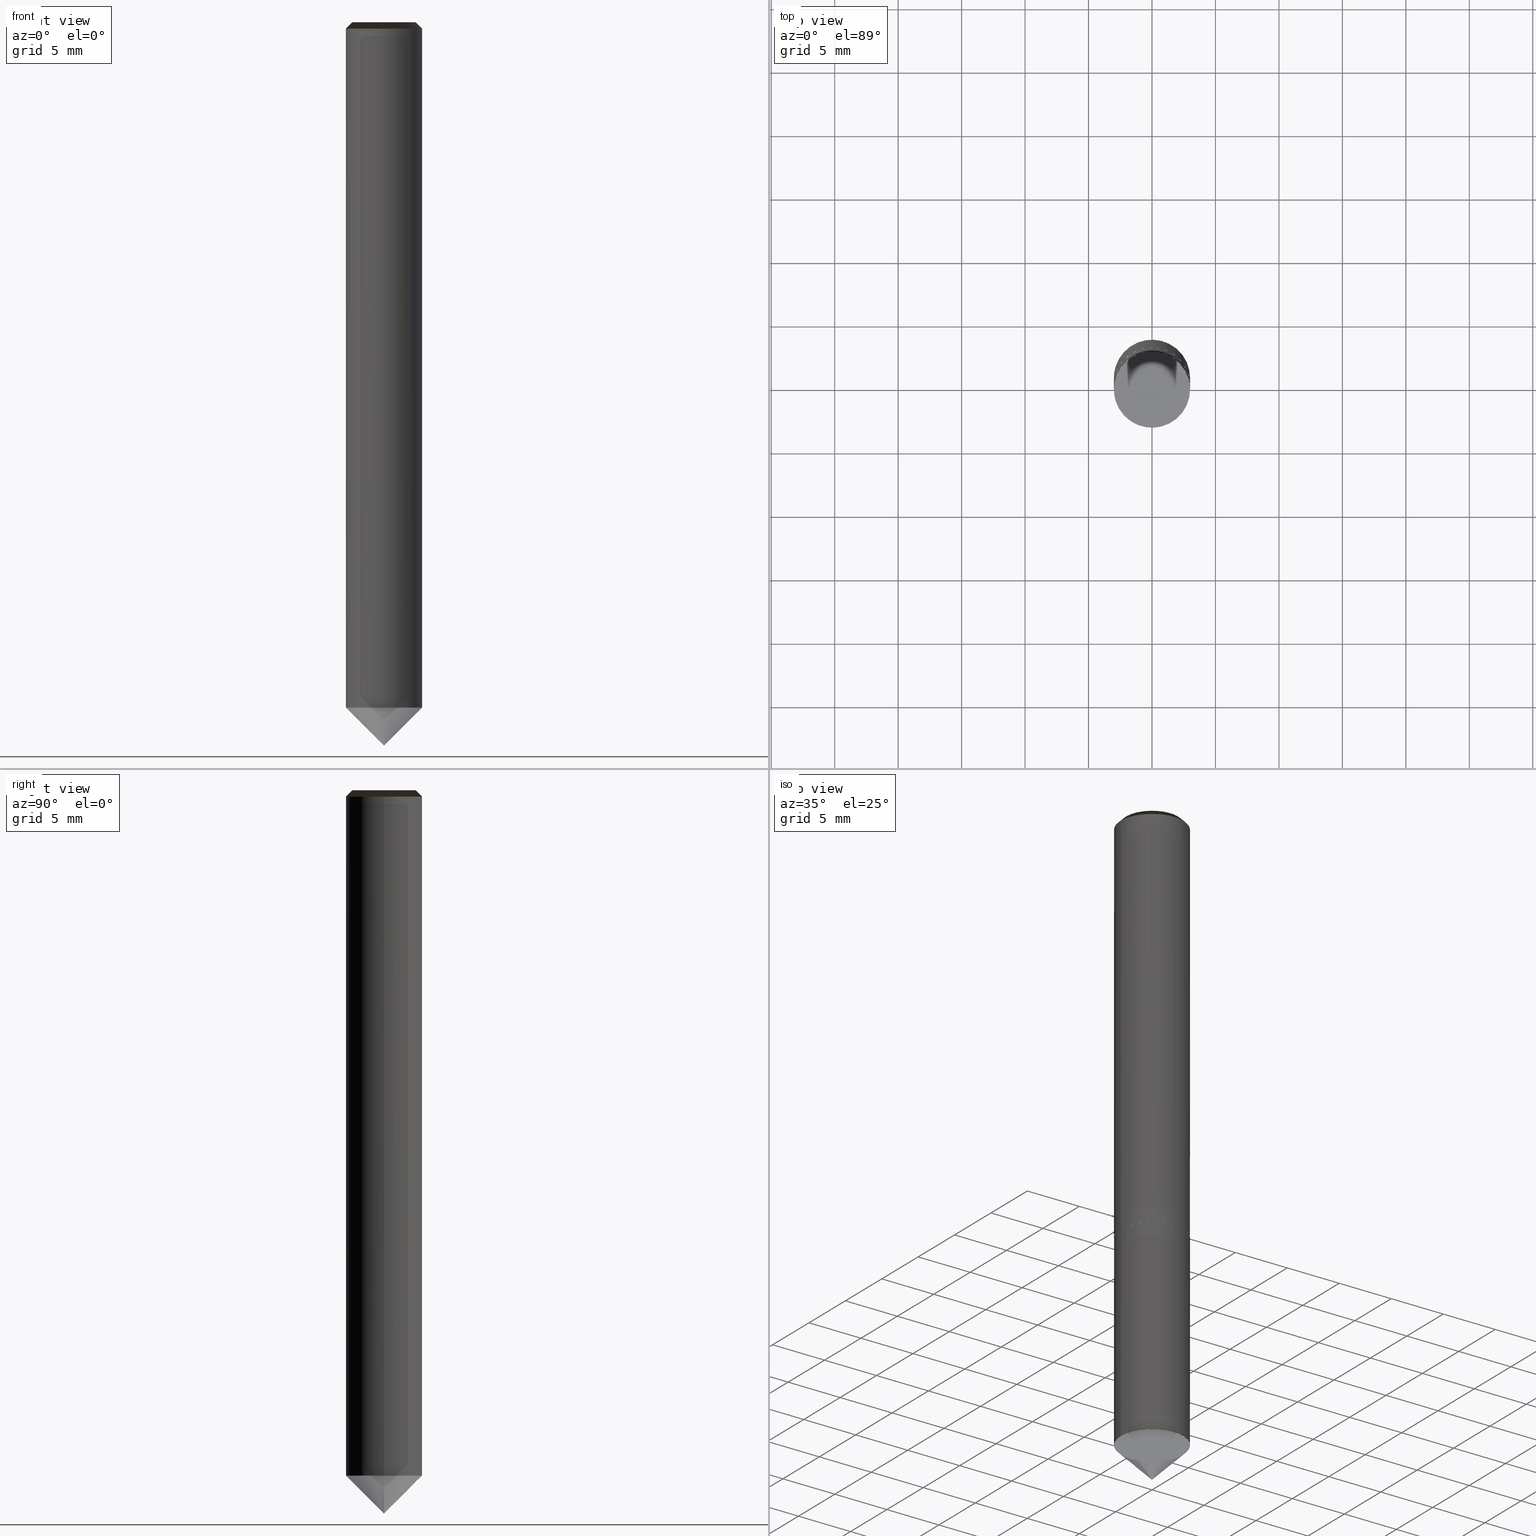
[diagram: canonical four-view strip — front | top / right | iso, engineering-drawing reading convention]
A machine part, canonical four-view strip (front | top / right | iso — engineering-drawing reading convention). The complete STEP part file that produces these views, byte-faithful:
ISO-10303-21;
HEADER;
/* Generated by ISBE GmbH (www.isbe.de) */
/* OPTION: using custom schema-name function */

FILE_DESCRIPTION(
/* description */ (''),
/* implementation_level */ '2;1');

FILE_NAME(
/*name*/ 'eXobj0000_181ED003',
/*time_stamp*/'2024-7-14T21:29:50',
/*author*/ ('ISBE GmbH'),
/*organization*/ ('ISBE GmbH'),
/*preprocessor_version*/ 'STEP IO v1.0',
/*originating_system*/ '',
/*authorisation*/ '');

FILE_SCHEMA (('AUTOMOTIVE_DESIGN'));
ENDSEC;

DATA;
#10=SHAPE_DEFINITION_REPRESENTATION(#11,#57);
#11=PRODUCT_DEFINITION_SHAPE('Document','',#13);
#12=PRODUCT_DEFINITION_CONTEXT('3D Mechanical Parts',#17,'design');
#13=PRODUCT_DEFINITION('A','First version',#14,#12);
#14=PRODUCT_DEFINITION_FORMATION_WITH_SPECIFIED_SOURCE('A','First version',#19,.MADE.);
#15=PRODUCT_RELATED_PRODUCT_CATEGORY('tool','tool',(#19));
#16=APPLICATION_PROTOCOL_DEFINITION('Draft International Standard', 'automotive_design',1999,#17);
#17=APPLICATION_CONTEXT('data for automotive mechanical design processes');
#18=PRODUCT_CONTEXT('3D Mechanical Parts',#17,'mechanical');
#19=PRODUCT('Document','Document','ISBE converted to STEP',(#18));
#20=(
LENGTH_UNIT()
NAMED_UNIT(*)
SI_UNIT(.MILLI.,.METRE.)
);
#21=(
NAMED_UNIT(*)
PLANE_ANGLE_UNIT()
SI_UNIT($,.RADIAN.)
);
#22=DIMENSIONAL_EXPONENTS(0.,0.,0.,0.,0.,0.,0.);
#23=PLANE_ANGLE_MEASURE_WITH_UNIT(PLANE_ANGLE_MEASURE(0.01745329252),#21);
#24=(
CONVERSION_BASED_UNIT('DEGREES',#23)
NAMED_UNIT(#22)
PLANE_ANGLE_UNIT()
);
#25=(
NAMED_UNIT(*)
SI_UNIT($,.STERADIAN.)
SOLID_ANGLE_UNIT()
);
#26=UNCERTAINTY_MEASURE_WITH_UNIT(LENGTH_MEASURE(0.001),#20, 'DISTANCE_ACCURACY_VALUE', 'Maximum model space distance between geometric entities at asserted connectivities');
#27=(
GEOMETRIC_REPRESENTATION_CONTEXT(3)
GLOBAL_UNCERTAINTY_ASSIGNED_CONTEXT((#26))
GLOBAL_UNIT_ASSIGNED_CONTEXT((#25,#24,#20))
REPRESENTATION_CONTEXT('ID1','3D')
);
#28=CARTESIAN_POINT('',(0.0,0.0,0.0));
#29=DIRECTION('',(1.0,0.0,0.0));
#30=DIRECTION('',(0.0,0.0,1.0));
#31=AXIS2_PLACEMENT_3D('',#28,#30,#29);
#32=CARTESIAN_POINT('',(0.0,0.0,0.0));
#33=DIRECTION('',(1.0,0.0,0.0));
#34=DIRECTION('',(0.0,0.0,1.0));
#35=AXIS2_PLACEMENT_3D('',#32,#34,#33);
#36=CARTESIAN_POINT('',(0.0,0.0,0.0));
#37=DIRECTION('',(1.0,0.0,0.0));
#38=DIRECTION('',(0.0,0.0,1.0));
#39=AXIS2_PLACEMENT_3D('',#36,#38,#37);
#40=CARTESIAN_POINT('',(0.0,0.0,0.0));
#41=DIRECTION('',(0.0,0.0,1.0));
#42=DIRECTION('',(1.0,0.0,0.0));
#43=AXIS2_PLACEMENT_3D('MCS',#40,#42,#41);
#44=CARTESIAN_POINT('',(0.0,0.0,36.0));
#45=DIRECTION('',(0.0,0.0,1.0));
#46=DIRECTION('',(1.0,0.0,0.0));
#47=AXIS2_PLACEMENT_3D('PCS',#44,#46,#45);
#48=CARTESIAN_POINT('',(0.0,0.0,-21.0));
#49=DIRECTION('',(0.0,0.0,1.0));
#50=DIRECTION('',(1.0,0.0,0.0));
#51=AXIS2_PLACEMENT_3D('CIP',#48,#50,#49);
#52=CARTESIAN_POINT('',(0.0,-3.0,-21.0));
#53=DIRECTION('',(0.0,0.0,1.0));
#54=DIRECTION('',(1.0,0.0,0.0));
#55=AXIS2_PLACEMENT_3D('CRP',#52,#54,#53);
#57=SHAPE_REPRESENTATION('Document',(#31,#35,#39,#43,#47,#51,#55),#27);
#58=DIRECTION('',(1.0,0.0,0.0));
#59=DIRECTION('',(0.0,0.0,1.0));
#60=CARTESIAN_POINT('',(-0.029998499962,-0.0003,-20.97));
#61=CARTESIAN_POINT('',(-0.029386285678,-0.061518367347,-20.908778571505));
#62=CARTESIAN_POINT('',(-0.028774071393,-0.122736734694,-20.84755714301));
#63=CARTESIAN_POINT('',(-0.028161857108,-0.183955102041,-20.786335714515));
#64=CARTESIAN_POINT('',(-0.027549642823,-0.245173469388,-20.72511428602));
#65=CARTESIAN_POINT('',(-0.026937428538,-0.306391836735,-20.663892857526));
#66=CARTESIAN_POINT('',(-0.026325214253,-0.367610204082,-20.602671429031));
#67=CARTESIAN_POINT('',(-0.025712999968,-0.428828571429,-20.541450000536));
#68=CARTESIAN_POINT('',(-0.025100785683,-0.490046938776,-20.480228572041));
#69=CARTESIAN_POINT('',(-0.024488571398,-0.551265306122,-20.419007143546));
#70=CARTESIAN_POINT('',(-0.023876357113,-0.612483673469,-20.357785715051));
#71=CARTESIAN_POINT('',(-0.023264142828,-0.673702040816,-20.296564286556));
#72=CARTESIAN_POINT('',(-0.022651928543,-0.734920408163,-20.235342858061));
#73=CARTESIAN_POINT('',(-0.022039714258,-0.79613877551,-20.174121429566));
#74=CARTESIAN_POINT('',(-0.021427499973,-0.857357142857,-20.112900001071));
#75=CARTESIAN_POINT('',(-0.020815285688,-0.918575510204,-20.051678572577));
#76=CARTESIAN_POINT('',(-0.020203071403,-0.979793877551,-19.990457144082));
#77=CARTESIAN_POINT('',(-0.019590857118,-1.041012244898,-19.929235715587));
#78=CARTESIAN_POINT('',(-0.018978642833,-1.102230612245,-19.868014287092));
#79=CARTESIAN_POINT('',(-0.018366428548,-1.163448979592,-19.806792858597));
#80=CARTESIAN_POINT('',(-0.017754214264,-1.224667346939,-19.745571430102));
#81=CARTESIAN_POINT('',(-0.017141999979,-1.285885714286,-19.684350001607));
#82=CARTESIAN_POINT('',(-0.016529785694,-1.347104081633,-19.623128573112));
#83=CARTESIAN_POINT('',(-0.015917571409,-1.40832244898,-19.561907144617));
#84=CARTESIAN_POINT('',(-0.015305357124,-1.469540816327,-19.500685716123));
#85=CARTESIAN_POINT('',(-0.014693142839,-1.530759183673,-19.439464287628));
#86=CARTESIAN_POINT('',(-0.014080928554,-1.59197755102,-19.378242859133));
#87=CARTESIAN_POINT('',(-0.013468714269,-1.653195918367,-19.317021430638));
#88=CARTESIAN_POINT('',(-0.012856499984,-1.714414285714,-19.255800002143));
#89=CARTESIAN_POINT('',(-0.012244285699,-1.775632653061,-19.194578573648));
#90=CARTESIAN_POINT('',(-0.011632071414,-1.836851020408,-19.133357145153));
#91=CARTESIAN_POINT('',(-0.011019857129,-1.898069387755,-19.072135716658));
#92=CARTESIAN_POINT('',(-0.010407642844,-1.959287755102,-19.010914288163));
#93=CARTESIAN_POINT('',(-0.009795428559,-2.020506122449,-18.949692859669));
#94=CARTESIAN_POINT('',(-0.009183214274,-2.081724489796,-18.888471431174));
#95=CARTESIAN_POINT('',(-0.008570999989,-2.142942857143,-18.827250002679));
#96=CARTESIAN_POINT('',(-0.007958785704,-2.20416122449,-18.766028574184));
#97=CARTESIAN_POINT('',(-0.007346571419,-2.265379591837,-18.704807145689));
#98=CARTESIAN_POINT('',(-0.006734357134,-2.326597959184,-18.643585717194));
#99=CARTESIAN_POINT('',(-0.006122142849,-2.387816326531,-18.582364288699));
#100=CARTESIAN_POINT('',(-0.005509928565,-2.449034693878,-18.521142860204));
#101=CARTESIAN_POINT('',(-0.00489771428,-2.510253061224,-18.459921431709));
#102=CARTESIAN_POINT('',(-0.004285499995,-2.571471428571,-18.398700003214));
#103=CARTESIAN_POINT('',(-0.00367328571,-2.632689795918,-18.33747857472));
#104=CARTESIAN_POINT('',(-0.003061071425,-2.693908163265,-18.276257146225));
#105=CARTESIAN_POINT('',(-0.00244885714,-2.755126530612,-18.21503571773));
#106=CARTESIAN_POINT('',(-0.001836642855,-2.816344897959,-18.153814289235));
#107=CARTESIAN_POINT('',(-0.00122442857,-2.877563265306,-18.09259286074));
#108=CARTESIAN_POINT('',(-0.000612214285,-2.938781632653,-18.031371432245));
#109=CARTESIAN_POINT('',(0.0,-3.0,-17.97015000375));
#110=CARTESIAN_POINT('',(0.0003,-0.029998499962,-20.97));
#111=CARTESIAN_POINT('',(0.061518367347,-0.029386285678,-20.908778571505));
#112=CARTESIAN_POINT('',(0.122736734694,-0.028774071393,-20.84755714301));
#113=CARTESIAN_POINT('',(0.183955102041,-0.028161857108,-20.786335714515));
#114=CARTESIAN_POINT('',(0.245173469388,-0.027549642823,-20.72511428602));
#115=CARTESIAN_POINT('',(0.306391836735,-0.026937428538,-20.663892857526));
#116=CARTESIAN_POINT('',(0.367610204082,-0.026325214253,-20.602671429031));
#117=CARTESIAN_POINT('',(0.428828571429,-0.025712999968,-20.541450000536));
#118=CARTESIAN_POINT('',(0.490046938776,-0.025100785683,-20.480228572041));
#119=CARTESIAN_POINT('',(0.551265306122,-0.024488571398,-20.419007143546));
#120=CARTESIAN_POINT('',(0.612483673469,-0.023876357113,-20.357785715051));
#121=CARTESIAN_POINT('',(0.673702040816,-0.023264142828,-20.296564286556));
#122=CARTESIAN_POINT('',(0.734920408163,-0.022651928543,-20.235342858061));
#123=CARTESIAN_POINT('',(0.79613877551,-0.022039714258,-20.174121429566));
#124=CARTESIAN_POINT('',(0.857357142857,-0.021427499973,-20.112900001071));
#125=CARTESIAN_POINT('',(0.918575510204,-0.020815285688,-20.051678572577));
#126=CARTESIAN_POINT('',(0.979793877551,-0.020203071403,-19.990457144082));
#127=CARTESIAN_POINT('',(1.041012244898,-0.019590857118,-19.929235715587));
#128=CARTESIAN_POINT('',(1.102230612245,-0.018978642833,-19.868014287092));
#129=CARTESIAN_POINT('',(1.163448979592,-0.018366428548,-19.806792858597));
#130=CARTESIAN_POINT('',(1.224667346939,-0.017754214264,-19.745571430102));
#131=CARTESIAN_POINT('',(1.285885714286,-0.017141999979,-19.684350001607));
#132=CARTESIAN_POINT('',(1.347104081633,-0.016529785694,-19.623128573112));
#133=CARTESIAN_POINT('',(1.40832244898,-0.015917571409,-19.561907144617));
#134=CARTESIAN_POINT('',(1.469540816327,-0.015305357124,-19.500685716123));
#135=CARTESIAN_POINT('',(1.530759183673,-0.014693142839,-19.439464287628));
#136=CARTESIAN_POINT('',(1.59197755102,-0.014080928554,-19.378242859133));
#137=CARTESIAN_POINT('',(1.653195918367,-0.013468714269,-19.317021430638));
#138=CARTESIAN_POINT('',(1.714414285714,-0.012856499984,-19.255800002143));
#139=CARTESIAN_POINT('',(1.775632653061,-0.012244285699,-19.194578573648));
#140=CARTESIAN_POINT('',(1.836851020408,-0.011632071414,-19.133357145153));
#141=CARTESIAN_POINT('',(1.898069387755,-0.011019857129,-19.072135716658));
#142=CARTESIAN_POINT('',(1.959287755102,-0.010407642844,-19.010914288163));
#143=CARTESIAN_POINT('',(2.020506122449,-0.009795428559,-18.949692859669));
#144=CARTESIAN_POINT('',(2.081724489796,-0.009183214274,-18.888471431174));
#145=CARTESIAN_POINT('',(2.142942857143,-0.008570999989,-18.827250002679));
#146=CARTESIAN_POINT('',(2.20416122449,-0.007958785704,-18.766028574184));
#147=CARTESIAN_POINT('',(2.265379591837,-0.007346571419,-18.704807145689));
#148=CARTESIAN_POINT('',(2.326597959184,-0.006734357134,-18.643585717194));
#149=CARTESIAN_POINT('',(2.387816326531,-0.006122142849,-18.582364288699));
#150=CARTESIAN_POINT('',(2.449034693878,-0.005509928565,-18.521142860204));
#151=CARTESIAN_POINT('',(2.510253061224,-0.00489771428,-18.459921431709));
#152=CARTESIAN_POINT('',(2.571471428571,-0.004285499995,-18.398700003214));
#153=CARTESIAN_POINT('',(2.632689795918,-0.00367328571,-18.33747857472));
#154=CARTESIAN_POINT('',(2.693908163265,-0.003061071425,-18.276257146225));
#155=CARTESIAN_POINT('',(2.755126530612,-0.00244885714,-18.21503571773));
#156=CARTESIAN_POINT('',(2.816344897959,-0.001836642855,-18.153814289235));
#157=CARTESIAN_POINT('',(2.877563265306,-0.00122442857,-18.09259286074));
#158=CARTESIAN_POINT('',(2.938781632653,-0.000612214285,-18.031371432245));
#159=CARTESIAN_POINT('',(3.0,0.0,-17.97015000375));
#160=CARTESIAN_POINT('',(0.029998499962,0.0003,-20.97));
#161=CARTESIAN_POINT('',(0.029386285678,0.061518367347,-20.908778571505));
#162=CARTESIAN_POINT('',(0.028774071393,0.122736734694,-20.84755714301));
#163=CARTESIAN_POINT('',(0.028161857108,0.183955102041,-20.786335714515));
#164=CARTESIAN_POINT('',(0.027549642823,0.245173469388,-20.72511428602));
#165=CARTESIAN_POINT('',(0.026937428538,0.306391836735,-20.663892857526));
#166=CARTESIAN_POINT('',(0.026325214253,0.367610204082,-20.602671429031));
#167=CARTESIAN_POINT('',(0.025712999968,0.428828571429,-20.541450000536));
#168=CARTESIAN_POINT('',(0.025100785683,0.490046938776,-20.480228572041));
#169=CARTESIAN_POINT('',(0.024488571398,0.551265306122,-20.419007143546));
#170=CARTESIAN_POINT('',(0.023876357113,0.612483673469,-20.357785715051));
#171=CARTESIAN_POINT('',(0.023264142828,0.673702040816,-20.296564286556));
#172=CARTESIAN_POINT('',(0.022651928543,0.734920408163,-20.235342858061));
#173=CARTESIAN_POINT('',(0.022039714258,0.79613877551,-20.174121429566));
#174=CARTESIAN_POINT('',(0.021427499973,0.857357142857,-20.112900001071));
#175=CARTESIAN_POINT('',(0.020815285688,0.918575510204,-20.051678572577));
#176=CARTESIAN_POINT('',(0.020203071403,0.979793877551,-19.990457144082));
#177=CARTESIAN_POINT('',(0.019590857118,1.041012244898,-19.929235715587));
#178=CARTESIAN_POINT('',(0.018978642833,1.102230612245,-19.868014287092));
#179=CARTESIAN_POINT('',(0.018366428548,1.163448979592,-19.806792858597));
#180=CARTESIAN_POINT('',(0.017754214264,1.224667346939,-19.745571430102));
#181=CARTESIAN_POINT('',(0.017141999979,1.285885714286,-19.684350001607));
#182=CARTESIAN_POINT('',(0.016529785694,1.347104081633,-19.623128573112));
#183=CARTESIAN_POINT('',(0.015917571409,1.40832244898,-19.561907144617));
#184=CARTESIAN_POINT('',(0.015305357124,1.469540816327,-19.500685716123));
#185=CARTESIAN_POINT('',(0.014693142839,1.530759183673,-19.439464287628));
#186=CARTESIAN_POINT('',(0.014080928554,1.59197755102,-19.378242859133));
#187=CARTESIAN_POINT('',(0.013468714269,1.653195918367,-19.317021430638));
#188=CARTESIAN_POINT('',(0.012856499984,1.714414285714,-19.255800002143));
#189=CARTESIAN_POINT('',(0.012244285699,1.775632653061,-19.194578573648));
#190=CARTESIAN_POINT('',(0.011632071414,1.836851020408,-19.133357145153));
#191=CARTESIAN_POINT('',(0.011019857129,1.898069387755,-19.072135716658));
#192=CARTESIAN_POINT('',(0.010407642844,1.959287755102,-19.010914288163));
#193=CARTESIAN_POINT('',(0.009795428559,2.020506122449,-18.949692859669));
#194=CARTESIAN_POINT('',(0.009183214274,2.081724489796,-18.888471431174));
#195=CARTESIAN_POINT('',(0.008570999989,2.142942857143,-18.827250002679));
#196=CARTESIAN_POINT('',(0.007958785704,2.20416122449,-18.766028574184));
#197=CARTESIAN_POINT('',(0.007346571419,2.265379591837,-18.704807145689));
#198=CARTESIAN_POINT('',(0.006734357134,2.326597959184,-18.643585717194));
#199=CARTESIAN_POINT('',(0.006122142849,2.387816326531,-18.582364288699));
#200=CARTESIAN_POINT('',(0.005509928565,2.449034693878,-18.521142860204));
#201=CARTESIAN_POINT('',(0.00489771428,2.510253061224,-18.459921431709));
#202=CARTESIAN_POINT('',(0.004285499995,2.571471428571,-18.398700003214));
#203=CARTESIAN_POINT('',(0.00367328571,2.632689795918,-18.33747857472));
#204=CARTESIAN_POINT('',(0.003061071425,2.693908163265,-18.276257146225));
#205=CARTESIAN_POINT('',(0.00244885714,2.755126530612,-18.21503571773));
#206=CARTESIAN_POINT('',(0.001836642855,2.816344897959,-18.153814289235));
#207=CARTESIAN_POINT('',(0.00122442857,2.877563265306,-18.09259286074));
#208=CARTESIAN_POINT('',(0.000612214285,2.938781632653,-18.031371432245));
#209=CARTESIAN_POINT('',(0.0,3.0,-17.97015000375));
#210=CARTESIAN_POINT('',(-0.0003,0.029998499962,-20.97));
#211=CARTESIAN_POINT('',(-0.061518367347,0.029386285678,-20.908778571505));
#212=CARTESIAN_POINT('',(-0.122736734694,0.028774071393,-20.84755714301));
#213=CARTESIAN_POINT('',(-0.183955102041,0.028161857108,-20.786335714515));
#214=CARTESIAN_POINT('',(-0.245173469388,0.027549642823,-20.72511428602));
#215=CARTESIAN_POINT('',(-0.306391836735,0.026937428538,-20.663892857526));
#216=CARTESIAN_POINT('',(-0.367610204082,0.026325214253,-20.602671429031));
#217=CARTESIAN_POINT('',(-0.428828571429,0.025712999968,-20.541450000536));
#218=CARTESIAN_POINT('',(-0.490046938776,0.025100785683,-20.480228572041));
#219=CARTESIAN_POINT('',(-0.551265306122,0.024488571398,-20.419007143546));
#220=CARTESIAN_POINT('',(-0.612483673469,0.023876357113,-20.357785715051));
#221=CARTESIAN_POINT('',(-0.673702040816,0.023264142828,-20.296564286556));
#222=CARTESIAN_POINT('',(-0.734920408163,0.022651928543,-20.235342858061));
#223=CARTESIAN_POINT('',(-0.79613877551,0.022039714258,-20.174121429566));
#224=CARTESIAN_POINT('',(-0.857357142857,0.021427499973,-20.112900001071));
#225=CARTESIAN_POINT('',(-0.918575510204,0.020815285688,-20.051678572577));
#226=CARTESIAN_POINT('',(-0.979793877551,0.020203071403,-19.990457144082));
#227=CARTESIAN_POINT('',(-1.041012244898,0.019590857118,-19.929235715587));
#228=CARTESIAN_POINT('',(-1.102230612245,0.018978642833,-19.868014287092));
#229=CARTESIAN_POINT('',(-1.163448979592,0.018366428548,-19.806792858597));
#230=CARTESIAN_POINT('',(-1.224667346939,0.017754214264,-19.745571430102));
#231=CARTESIAN_POINT('',(-1.285885714286,0.017141999979,-19.684350001607));
#232=CARTESIAN_POINT('',(-1.347104081633,0.016529785694,-19.623128573112));
#233=CARTESIAN_POINT('',(-1.40832244898,0.015917571409,-19.561907144617));
#234=CARTESIAN_POINT('',(-1.469540816327,0.015305357124,-19.500685716123));
#235=CARTESIAN_POINT('',(-1.530759183673,0.014693142839,-19.439464287628));
#236=CARTESIAN_POINT('',(-1.59197755102,0.014080928554,-19.378242859133));
#237=CARTESIAN_POINT('',(-1.653195918367,0.013468714269,-19.317021430638));
#238=CARTESIAN_POINT('',(-1.714414285714,0.012856499984,-19.255800002143));
#239=CARTESIAN_POINT('',(-1.775632653061,0.012244285699,-19.194578573648));
#240=CARTESIAN_POINT('',(-1.836851020408,0.011632071414,-19.133357145153));
#241=CARTESIAN_POINT('',(-1.898069387755,0.011019857129,-19.072135716658));
#242=CARTESIAN_POINT('',(-1.959287755102,0.010407642844,-19.010914288163));
#243=CARTESIAN_POINT('',(-2.020506122449,0.009795428559,-18.949692859669));
#244=CARTESIAN_POINT('',(-2.081724489796,0.009183214274,-18.888471431174));
#245=CARTESIAN_POINT('',(-2.142942857143,0.008570999989,-18.827250002679));
#246=CARTESIAN_POINT('',(-2.20416122449,0.007958785704,-18.766028574184));
#247=CARTESIAN_POINT('',(-2.265379591837,0.007346571419,-18.704807145689));
#248=CARTESIAN_POINT('',(-2.326597959184,0.006734357134,-18.643585717194));
#249=CARTESIAN_POINT('',(-2.387816326531,0.006122142849,-18.582364288699));
#250=CARTESIAN_POINT('',(-2.449034693878,0.005509928565,-18.521142860204));
#251=CARTESIAN_POINT('',(-2.510253061224,0.00489771428,-18.459921431709));
#252=CARTESIAN_POINT('',(-2.571471428571,0.004285499995,-18.398700003214));
#253=CARTESIAN_POINT('',(-2.632689795918,0.00367328571,-18.33747857472));
#254=CARTESIAN_POINT('',(-2.693908163265,0.003061071425,-18.276257146225));
#255=CARTESIAN_POINT('',(-2.755126530612,0.00244885714,-18.21503571773));
#256=CARTESIAN_POINT('',(-2.816344897959,0.001836642855,-18.153814289235));
#257=CARTESIAN_POINT('',(-2.877563265306,0.00122442857,-18.09259286074));
#258=CARTESIAN_POINT('',(-2.938781632653,0.000612214285,-18.031371432245));
#259=CARTESIAN_POINT('',(-3.0,-0.0,-17.97015000375));
#260=CARTESIAN_POINT('',(0.0,0.0,-21.0));
#261=CARTESIAN_POINT('',(3.0,0.0,-18.0));
#262=CARTESIAN_POINT('',(3.0,3.0,-18.0));
#263=CARTESIAN_POINT('',(0.0,3.0,-18.0));
#264=CARTESIAN_POINT('',(-3.0,3.0,-18.0));
#265=CARTESIAN_POINT('',(-3.0,0.0,-18.0));
#266=CARTESIAN_POINT('',(0.0,0.0,-18.0));
#267=CARTESIAN_POINT('',(-3.0,-3.0,-18.0));
#268=CARTESIAN_POINT('',(0.0,-3.0,-18.0));
#269=CARTESIAN_POINT('',(3.0,-3.0,-18.0));
#270=CARTESIAN_POINT('',(3.0,0.0,0.0));
#271=CARTESIAN_POINT('',(3.0,3.0,0.0));
#272=CARTESIAN_POINT('',(0.0,3.0,0.0));
#273=CARTESIAN_POINT('',(-3.0,3.0,0.0));
#274=CARTESIAN_POINT('',(-3.0,0.0,0.0));
#275=CARTESIAN_POINT('',(3.0,0.0,35.5));
#276=CARTESIAN_POINT('',(3.0,3.0,35.5));
#277=CARTESIAN_POINT('',(0.0,3.0,35.5));
#278=CARTESIAN_POINT('',(-3.0,3.0,35.5));
#279=CARTESIAN_POINT('',(-3.0,0.0,35.5));
#280=CARTESIAN_POINT('',(2.5,0.0,36.0));
#281=CARTESIAN_POINT('',(2.5,2.5,36.0));
#282=CARTESIAN_POINT('',(0.0,2.5,36.0));
#283=CARTESIAN_POINT('',(-2.5,2.5,36.0));
#284=CARTESIAN_POINT('',(-2.5,0.0,36.0));
#285=CARTESIAN_POINT('',(0.0,0.0,36.0));
#286=CARTESIAN_POINT('',(-3.0,-3.0,0.0));
#287=CARTESIAN_POINT('',(0.0,-3.0,0.0));
#288=CARTESIAN_POINT('',(3.0,-3.0,0.0));
#289=CARTESIAN_POINT('',(-3.0,-3.0,35.5));
#290=CARTESIAN_POINT('',(0.0,-3.0,35.5));
#291=CARTESIAN_POINT('',(3.0,-3.0,35.5));
#292=CARTESIAN_POINT('',(-2.5,-2.5,36.0));
#293=CARTESIAN_POINT('',(0.0,-2.5,36.0));
#294=CARTESIAN_POINT('',(2.5,-2.5,36.0));
#295=(
BOUNDED_CURVE()
B_SPLINE_CURVE(1,(#60,#61,#62,#63,#64,#65,#66,#67,#68,#69,#70,#71,#72,#73,#74,#75,#76,#77,#78,#79,#80,#81,#82,#83,#84,#85,#86,#87,#88,#89,#90,#91,#92,#93,#94,#95,#96,#97,#98,#99,#100,#101,#102,#103,#104,#105,#106,#107,#108,#109),.UNSPECIFIED.,.F.,.F.)
B_SPLINE_CURVE_WITH_KNOTS((2,1,1,1,1,1,1,1,1,1,1,1,1,1,1,1,1,1,1,1,1,1,1,1,1,1,1,1,1,1,1,1,1,1,1,1,1,1,1,1,1,1,1,1,1,1,1,1,1,2),
(0.0,0.020408163265,0.040816326531,0.061224489796,0.081632653061,0.102040816327,0.122448979592,0.142857142857,0.163265306122,0.183673469388,0.204081632653,0.224489795918,0.244897959184,0.265306122449,0.285714285714,0.30612244898,0.326530612245,0.34693877551,0.367346938776,0.387755102041,0.408163265306,0.428571428571,0.448979591837,0.469387755102,0.489795918367,0.510204081633,0.530612244898,0.551020408163,0.571428571429,0.591836734694,0.612244897959,0.632653061224,0.65306122449,0.673469387755,0.69387755102,0.714285714286,0.734693877551,0.755102040816,0.775510204082,0.795918367347,0.816326530612,0.836734693878,0.857142857143,0.877551020408,0.897959183673,0.918367346939,0.938775510204,0.959183673469,0.979591836735,1.0),.UNSPECIFIED.)
CURVE()
GEOMETRIC_REPRESENTATION_ITEM()
RATIONAL_B_SPLINE_CURVE((1.0,1.0,1.0,1.0,1.0,1.0,1.0,1.0,1.0,1.0,1.0,1.0,1.0,1.0,1.0,1.0,1.0,1.0,1.0,1.0,1.0,1.0,1.0,1.0,1.0,1.0,1.0,1.0,1.0,1.0,1.0,1.0,1.0,1.0,1.0,1.0,1.0,1.0,1.0,1.0,1.0,1.0,1.0,1.0,1.0,1.0,1.0,1.0,1.0,1.0))
REPRESENTATION_ITEM('')
);
#296=(
BOUNDED_CURVE()
B_SPLINE_CURVE(1,(#110,#111,#112,#113,#114,#115,#116,#117,#118,#119,#120,#121,#122,#123,#124,#125,#126,#127,#128,#129,#130,#131,#132,#133,#134,#135,#136,#137,#138,#139,#140,#141,#142,#143,#144,#145,#146,#147,#148,#149,#150,#151,#152,#153,#154,#155,#156,#157,#158,#159),.UNSPECIFIED.,.F.,.F.)
B_SPLINE_CURVE_WITH_KNOTS((2,1,1,1,1,1,1,1,1,1,1,1,1,1,1,1,1,1,1,1,1,1,1,1,1,1,1,1,1,1,1,1,1,1,1,1,1,1,1,1,1,1,1,1,1,1,1,1,1,2),
(0.0,0.020408163265,0.040816326531,0.061224489796,0.081632653061,0.102040816327,0.122448979592,0.142857142857,0.163265306122,0.183673469388,0.204081632653,0.224489795918,0.244897959184,0.265306122449,0.285714285714,0.30612244898,0.326530612245,0.34693877551,0.367346938776,0.387755102041,0.408163265306,0.428571428571,0.448979591837,0.469387755102,0.489795918367,0.510204081633,0.530612244898,0.551020408163,0.571428571429,0.591836734694,0.612244897959,0.632653061224,0.65306122449,0.673469387755,0.69387755102,0.714285714286,0.734693877551,0.755102040816,0.775510204082,0.795918367347,0.816326530612,0.836734693878,0.857142857143,0.877551020408,0.897959183673,0.918367346939,0.938775510204,0.959183673469,0.979591836735,1.0),.UNSPECIFIED.)
CURVE()
GEOMETRIC_REPRESENTATION_ITEM()
RATIONAL_B_SPLINE_CURVE((1.0,1.0,1.0,1.0,1.0,1.0,1.0,1.0,1.0,1.0,1.0,1.0,1.0,1.0,1.0,1.0,1.0,1.0,1.0,1.0,1.0,1.0,1.0,1.0,1.0,1.0,1.0,1.0,1.0,1.0,1.0,1.0,1.0,1.0,1.0,1.0,1.0,1.0,1.0,1.0,1.0,1.0,1.0,1.0,1.0,1.0,1.0,1.0,1.0,1.0))
REPRESENTATION_ITEM('')
);
#297=(
BOUNDED_CURVE()
B_SPLINE_CURVE(1,(#160,#161,#162,#163,#164,#165,#166,#167,#168,#169,#170,#171,#172,#173,#174,#175,#176,#177,#178,#179,#180,#181,#182,#183,#184,#185,#186,#187,#188,#189,#190,#191,#192,#193,#194,#195,#196,#197,#198,#199,#200,#201,#202,#203,#204,#205,#206,#207,#208,#209),.UNSPECIFIED.,.F.,.F.)
B_SPLINE_CURVE_WITH_KNOTS((2,1,1,1,1,1,1,1,1,1,1,1,1,1,1,1,1,1,1,1,1,1,1,1,1,1,1,1,1,1,1,1,1,1,1,1,1,1,1,1,1,1,1,1,1,1,1,1,1,2),
(0.0,0.020408163265,0.040816326531,0.061224489796,0.081632653061,0.102040816327,0.122448979592,0.142857142857,0.163265306122,0.183673469388,0.204081632653,0.224489795918,0.244897959184,0.265306122449,0.285714285714,0.30612244898,0.326530612245,0.34693877551,0.367346938776,0.387755102041,0.408163265306,0.428571428571,0.448979591837,0.469387755102,0.489795918367,0.510204081633,0.530612244898,0.551020408163,0.571428571429,0.591836734694,0.612244897959,0.632653061224,0.65306122449,0.673469387755,0.69387755102,0.714285714286,0.734693877551,0.755102040816,0.775510204082,0.795918367347,0.816326530612,0.836734693878,0.857142857143,0.877551020408,0.897959183673,0.918367346939,0.938775510204,0.959183673469,0.979591836735,1.0),.UNSPECIFIED.)
CURVE()
GEOMETRIC_REPRESENTATION_ITEM()
RATIONAL_B_SPLINE_CURVE((1.0,1.0,1.0,1.0,1.0,1.0,1.0,1.0,1.0,1.0,1.0,1.0,1.0,1.0,1.0,1.0,1.0,1.0,1.0,1.0,1.0,1.0,1.0,1.0,1.0,1.0,1.0,1.0,1.0,1.0,1.0,1.0,1.0,1.0,1.0,1.0,1.0,1.0,1.0,1.0,1.0,1.0,1.0,1.0,1.0,1.0,1.0,1.0,1.0,1.0))
REPRESENTATION_ITEM('')
);
#298=(
BOUNDED_CURVE()
B_SPLINE_CURVE(1,(#210,#211,#212,#213,#214,#215,#216,#217,#218,#219,#220,#221,#222,#223,#224,#225,#226,#227,#228,#229,#230,#231,#232,#233,#234,#235,#236,#237,#238,#239,#240,#241,#242,#243,#244,#245,#246,#247,#248,#249,#250,#251,#252,#253,#254,#255,#256,#257,#258,#259),.UNSPECIFIED.,.F.,.F.)
B_SPLINE_CURVE_WITH_KNOTS((2,1,1,1,1,1,1,1,1,1,1,1,1,1,1,1,1,1,1,1,1,1,1,1,1,1,1,1,1,1,1,1,1,1,1,1,1,1,1,1,1,1,1,1,1,1,1,1,1,2),
(0.0,0.020408163265,0.040816326531,0.061224489796,0.081632653061,0.102040816327,0.122448979592,0.142857142857,0.163265306122,0.183673469388,0.204081632653,0.224489795918,0.244897959184,0.265306122449,0.285714285714,0.30612244898,0.326530612245,0.34693877551,0.367346938776,0.387755102041,0.408163265306,0.428571428571,0.448979591837,0.469387755102,0.489795918367,0.510204081633,0.530612244898,0.551020408163,0.571428571429,0.591836734694,0.612244897959,0.632653061224,0.65306122449,0.673469387755,0.69387755102,0.714285714286,0.734693877551,0.755102040816,0.775510204082,0.795918367347,0.816326530612,0.836734693878,0.857142857143,0.877551020408,0.897959183673,0.918367346939,0.938775510204,0.959183673469,0.979591836735,1.0),.UNSPECIFIED.)
CURVE()
GEOMETRIC_REPRESENTATION_ITEM()
RATIONAL_B_SPLINE_CURVE((1.0,1.0,1.0,1.0,1.0,1.0,1.0,1.0,1.0,1.0,1.0,1.0,1.0,1.0,1.0,1.0,1.0,1.0,1.0,1.0,1.0,1.0,1.0,1.0,1.0,1.0,1.0,1.0,1.0,1.0,1.0,1.0,1.0,1.0,1.0,1.0,1.0,1.0,1.0,1.0,1.0,1.0,1.0,1.0,1.0,1.0,1.0,1.0,1.0,1.0))
REPRESENTATION_ITEM('')
);
#299=SHAPE_REPRESENTATION_RELATIONSHIP('','',#57,#300);
#300=GEOMETRICALLY_BOUNDED_WIREFRAME_SHAPE_REPRESENTATION('Curves',(#301,#31),#27);
#301=GEOMETRIC_CURVE_SET('CurveSet',(#295,#296,#297,#298));
#302=(
BOUNDED_SURFACE()
B_SPLINE_SURFACE(1,2,(
(#260,#260,#260,#260,#260),
(#261,#262,#263,#264,#265)
), .UNSPECIFIED.,.F.,.F.,.F.)
B_SPLINE_SURFACE_WITH_KNOTS((2,2),(3,2,3),(
0.0,1.0),(
0.0,0.5,1.0), .UNSPECIFIED.)
GEOMETRIC_REPRESENTATION_ITEM()
RATIONAL_B_SPLINE_SURFACE(((1.0,0.707106781187,1.0,0.707106781187,1.0),
(1.0,0.707106781187,1.0,0.707106781187,1.0)
))
REPRESENTATION_ITEM('')
SURFACE()
);
#303=(
BOUNDED_CURVE()
B_SPLINE_CURVE(2,(#261,#262,#263,#264,#265),.UNSPECIFIED.,.F.,.F.)
B_SPLINE_CURVE_WITH_KNOTS((3,2,3),
(0.0,0.5,1.0),.UNSPECIFIED.)
CURVE()
GEOMETRIC_REPRESENTATION_ITEM()
RATIONAL_B_SPLINE_CURVE((1.0,0.707106781187,1.0,0.707106781187,1.0))
REPRESENTATION_ITEM('')
);
#304=(
BOUNDED_CURVE()
B_SPLINE_CURVE(1,(#265,#260),.UNSPECIFIED.,.F.,.F.)
B_SPLINE_CURVE_WITH_KNOTS((2,2),
(0.0,1.0),.UNSPECIFIED.)
CURVE()
GEOMETRIC_REPRESENTATION_ITEM()
RATIONAL_B_SPLINE_CURVE((1.0,1.0))
REPRESENTATION_ITEM('')
);
#305=(
BOUNDED_CURVE()
B_SPLINE_CURVE(1,(#260,#261),.UNSPECIFIED.,.F.,.F.)
B_SPLINE_CURVE_WITH_KNOTS((2,2),
(0.0,1.0),.UNSPECIFIED.)
CURVE()
GEOMETRIC_REPRESENTATION_ITEM()
RATIONAL_B_SPLINE_CURVE((1.0,1.0))
REPRESENTATION_ITEM('')
);
#306=VERTEX_POINT('',#260);
#307=VERTEX_POINT('',#261);
#308=VERTEX_POINT('',#265);
#309=EDGE_CURVE('',#307,#308,#303,.T.);
#310=EDGE_CURVE('',#308,#306,#304,.T.);
#311=EDGE_CURVE('',#306,#307,#305,.T.);
#312=ORIENTED_EDGE('',*,*,#309,.T.);
#313=ORIENTED_EDGE('',*,*,#310,.T.);
#314=ORIENTED_EDGE('',*,*,#311,.T.);
#315=EDGE_LOOP('',(#312,#313,#314));
#316=FACE_OUTER_BOUND('',#315,.T.);
#317=ADVANCED_FACE('',(#316),#302,.T.);
#318=(
BOUNDED_SURFACE()
B_SPLINE_SURFACE(1,2,(
(#261,#262,#263,#264,#265),
(#266,#266,#266,#266,#266)
), .UNSPECIFIED.,.F.,.F.,.F.)
B_SPLINE_SURFACE_WITH_KNOTS((2,2),(3,2,3),(
0.0,1.0),(
0.0,0.5,1.0), .UNSPECIFIED.)
GEOMETRIC_REPRESENTATION_ITEM()
RATIONAL_B_SPLINE_SURFACE(((1.0,0.707106781187,1.0,0.707106781187,1.0),
(1.0,0.707106781187,1.0,0.707106781187,1.0)
))
REPRESENTATION_ITEM('')
SURFACE()
);
#319=(
BOUNDED_CURVE()
B_SPLINE_CURVE(1,(#266,#261),.UNSPECIFIED.,.F.,.F.)
B_SPLINE_CURVE_WITH_KNOTS((2,2),
(0.0,1.0),.UNSPECIFIED.)
CURVE()
GEOMETRIC_REPRESENTATION_ITEM()
RATIONAL_B_SPLINE_CURVE((1.0,1.0))
REPRESENTATION_ITEM('')
);
#320=(
BOUNDED_CURVE()
B_SPLINE_CURVE(2,(#261,#262,#263,#264,#265),.UNSPECIFIED.,.F.,.F.)
B_SPLINE_CURVE_WITH_KNOTS((3,2,3),
(0.0,0.5,1.0),.UNSPECIFIED.)
CURVE()
GEOMETRIC_REPRESENTATION_ITEM()
RATIONAL_B_SPLINE_CURVE((1.0,0.707106781187,1.0,0.707106781187,1.0))
REPRESENTATION_ITEM('')
);
#321=(
BOUNDED_CURVE()
B_SPLINE_CURVE(1,(#265,#266),.UNSPECIFIED.,.F.,.F.)
B_SPLINE_CURVE_WITH_KNOTS((2,2),
(0.0,1.0),.UNSPECIFIED.)
CURVE()
GEOMETRIC_REPRESENTATION_ITEM()
RATIONAL_B_SPLINE_CURVE((1.0,1.0))
REPRESENTATION_ITEM('')
);
#322=VERTEX_POINT('',#261);
#323=VERTEX_POINT('',#265);
#324=VERTEX_POINT('',#266);
#325=EDGE_CURVE('',#324,#322,#319,.T.);
#326=EDGE_CURVE('',#322,#323,#320,.T.);
#327=EDGE_CURVE('',#323,#324,#321,.T.);
#328=ORIENTED_EDGE('',*,*,#325,.T.);
#329=ORIENTED_EDGE('',*,*,#326,.T.);
#330=ORIENTED_EDGE('',*,*,#327,.T.);
#331=EDGE_LOOP('',(#328,#329,#330));
#332=FACE_OUTER_BOUND('',#331,.T.);
#333=ADVANCED_FACE('',(#332),#318,.T.);
#334=(
BOUNDED_SURFACE()
B_SPLINE_SURFACE(1,2,(
(#260,#260,#260,#260,#260),
(#265,#267,#268,#269,#261)
), .UNSPECIFIED.,.F.,.F.,.F.)
B_SPLINE_SURFACE_WITH_KNOTS((2,2),(3,2,3),(
0.0,1.0),(
0.0,0.5,1.0), .UNSPECIFIED.)
GEOMETRIC_REPRESENTATION_ITEM()
RATIONAL_B_SPLINE_SURFACE(((1.0,0.707106781187,1.0,0.707106781187,1.0),
(1.0,0.707106781187,1.0,0.707106781187,1.0)
))
REPRESENTATION_ITEM('')
SURFACE()
);
#335=(
BOUNDED_CURVE()
B_SPLINE_CURVE(1,(#265,#260),.UNSPECIFIED.,.F.,.F.)
B_SPLINE_CURVE_WITH_KNOTS((2,2),
(0.0,1.0),.UNSPECIFIED.)
CURVE()
GEOMETRIC_REPRESENTATION_ITEM()
RATIONAL_B_SPLINE_CURVE((1.0,1.0))
REPRESENTATION_ITEM('')
);
#336=(
BOUNDED_CURVE()
B_SPLINE_CURVE(1,(#260,#261),.UNSPECIFIED.,.F.,.F.)
B_SPLINE_CURVE_WITH_KNOTS((2,2),
(0.0,1.0),.UNSPECIFIED.)
CURVE()
GEOMETRIC_REPRESENTATION_ITEM()
RATIONAL_B_SPLINE_CURVE((1.0,1.0))
REPRESENTATION_ITEM('')
);
#337=(
BOUNDED_CURVE()
B_SPLINE_CURVE(2,(#261,#269,#268,#267,#265),.UNSPECIFIED.,.F.,.F.)
B_SPLINE_CURVE_WITH_KNOTS((3,2,3),
(0.0,0.5,1.0),.UNSPECIFIED.)
CURVE()
GEOMETRIC_REPRESENTATION_ITEM()
RATIONAL_B_SPLINE_CURVE((1.0,0.707106781187,1.0,0.707106781187,1.0))
REPRESENTATION_ITEM('')
);
#338=VERTEX_POINT('',#260);
#339=VERTEX_POINT('',#261);
#340=VERTEX_POINT('',#265);
#341=EDGE_CURVE('',#340,#338,#335,.T.);
#342=EDGE_CURVE('',#338,#339,#336,.T.);
#343=EDGE_CURVE('',#339,#340,#337,.T.);
#344=ORIENTED_EDGE('',*,*,#341,.T.);
#345=ORIENTED_EDGE('',*,*,#342,.T.);
#346=ORIENTED_EDGE('',*,*,#343,.T.);
#347=EDGE_LOOP('',(#344,#345,#346));
#348=FACE_OUTER_BOUND('',#347,.T.);
#349=ADVANCED_FACE('',(#348),#334,.T.);
#350=(
BOUNDED_SURFACE()
B_SPLINE_SURFACE(1,2,(
(#265,#267,#268,#269,#261),
(#266,#266,#266,#266,#266)
), .UNSPECIFIED.,.F.,.F.,.F.)
B_SPLINE_SURFACE_WITH_KNOTS((2,2),(3,2,3),(
0.0,1.0),(
0.0,0.5,1.0), .UNSPECIFIED.)
GEOMETRIC_REPRESENTATION_ITEM()
RATIONAL_B_SPLINE_SURFACE(((1.0,0.707106781187,1.0,0.707106781187,1.0),
(1.0,0.707106781187,1.0,0.707106781187,1.0)
))
REPRESENTATION_ITEM('')
SURFACE()
);
#351=(
BOUNDED_CURVE()
B_SPLINE_CURVE(1,(#266,#261),.UNSPECIFIED.,.F.,.F.)
B_SPLINE_CURVE_WITH_KNOTS((2,2),
(0.0,1.0),.UNSPECIFIED.)
CURVE()
GEOMETRIC_REPRESENTATION_ITEM()
RATIONAL_B_SPLINE_CURVE((1.0,1.0))
REPRESENTATION_ITEM('')
);
#352=(
BOUNDED_CURVE()
B_SPLINE_CURVE(2,(#261,#269,#268,#267,#265),.UNSPECIFIED.,.F.,.F.)
B_SPLINE_CURVE_WITH_KNOTS((3,2,3),
(0.0,0.5,1.0),.UNSPECIFIED.)
CURVE()
GEOMETRIC_REPRESENTATION_ITEM()
RATIONAL_B_SPLINE_CURVE((1.0,0.707106781187,1.0,0.707106781187,1.0))
REPRESENTATION_ITEM('')
);
#353=(
BOUNDED_CURVE()
B_SPLINE_CURVE(1,(#265,#266),.UNSPECIFIED.,.F.,.F.)
B_SPLINE_CURVE_WITH_KNOTS((2,2),
(0.0,1.0),.UNSPECIFIED.)
CURVE()
GEOMETRIC_REPRESENTATION_ITEM()
RATIONAL_B_SPLINE_CURVE((1.0,1.0))
REPRESENTATION_ITEM('')
);
#354=VERTEX_POINT('',#261);
#355=VERTEX_POINT('',#265);
#356=VERTEX_POINT('',#266);
#357=EDGE_CURVE('',#356,#354,#351,.T.);
#358=EDGE_CURVE('',#354,#355,#352,.T.);
#359=EDGE_CURVE('',#355,#356,#353,.T.);
#360=ORIENTED_EDGE('',*,*,#357,.T.);
#361=ORIENTED_EDGE('',*,*,#358,.T.);
#362=ORIENTED_EDGE('',*,*,#359,.T.);
#363=EDGE_LOOP('',(#360,#361,#362));
#364=FACE_OUTER_BOUND('',#363,.T.);
#365=ADVANCED_FACE('',(#364),#350,.T.);
#366=CLOSED_SHELL('',(#317,#333,#349,#365));
#367=SHAPE_REPRESENTATION_RELATIONSHIP('','',#57,#368);
#368=ADVANCED_BREP_SHAPE_REPRESENTATION('Solid0',(#369,#31),#27);
#369=MANIFOLD_SOLID_BREP('brep',#366);
#370=(
BOUNDED_SURFACE()
B_SPLINE_SURFACE(1,2,(
(#266,#266,#266,#266,#266),
(#261,#262,#263,#264,#265)
), .UNSPECIFIED.,.F.,.F.,.F.)
B_SPLINE_SURFACE_WITH_KNOTS((2,2),(3,2,3),(
0.0,1.0),(
0.0,0.5,1.0), .UNSPECIFIED.)
GEOMETRIC_REPRESENTATION_ITEM()
RATIONAL_B_SPLINE_SURFACE(((1.0,0.707106781187,1.0,0.707106781187,1.0),
(1.0,0.707106781187,1.0,0.707106781187,1.0)
))
REPRESENTATION_ITEM('')
SURFACE()
);
#371=(
BOUNDED_CURVE()
B_SPLINE_CURVE(2,(#261,#262,#263,#264,#265),.UNSPECIFIED.,.F.,.F.)
B_SPLINE_CURVE_WITH_KNOTS((3,2,3),
(0.0,0.5,1.0),.UNSPECIFIED.)
CURVE()
GEOMETRIC_REPRESENTATION_ITEM()
RATIONAL_B_SPLINE_CURVE((1.0,0.707106781187,1.0,0.707106781187,1.0))
REPRESENTATION_ITEM('')
);
#372=(
BOUNDED_CURVE()
B_SPLINE_CURVE(1,(#265,#266),.UNSPECIFIED.,.F.,.F.)
B_SPLINE_CURVE_WITH_KNOTS((2,2),
(0.0,1.0),.UNSPECIFIED.)
CURVE()
GEOMETRIC_REPRESENTATION_ITEM()
RATIONAL_B_SPLINE_CURVE((1.0,1.0))
REPRESENTATION_ITEM('')
);
#373=(
BOUNDED_CURVE()
B_SPLINE_CURVE(1,(#266,#261),.UNSPECIFIED.,.F.,.F.)
B_SPLINE_CURVE_WITH_KNOTS((2,2),
(0.0,1.0),.UNSPECIFIED.)
CURVE()
GEOMETRIC_REPRESENTATION_ITEM()
RATIONAL_B_SPLINE_CURVE((1.0,1.0))
REPRESENTATION_ITEM('')
);
#374=VERTEX_POINT('',#261);
#375=VERTEX_POINT('',#265);
#376=VERTEX_POINT('',#266);
#377=EDGE_CURVE('',#374,#375,#371,.T.);
#378=EDGE_CURVE('',#375,#376,#372,.T.);
#379=EDGE_CURVE('',#376,#374,#373,.T.);
#380=ORIENTED_EDGE('',*,*,#377,.T.);
#381=ORIENTED_EDGE('',*,*,#378,.T.);
#382=ORIENTED_EDGE('',*,*,#379,.T.);
#383=EDGE_LOOP('',(#380,#381,#382));
#384=FACE_OUTER_BOUND('',#383,.T.);
#385=ADVANCED_FACE('',(#384),#370,.T.);
#386=(
BOUNDED_SURFACE()
B_SPLINE_SURFACE(1,2,(
(#261,#262,#263,#264,#265),
(#270,#271,#272,#273,#274)
), .UNSPECIFIED.,.F.,.F.,.F.)
B_SPLINE_SURFACE_WITH_KNOTS((2,2),(3,2,3),(
0.0,1.0),(
0.0,0.5,1.0), .UNSPECIFIED.)
GEOMETRIC_REPRESENTATION_ITEM()
RATIONAL_B_SPLINE_SURFACE(((1.0,0.707106781187,1.0,0.707106781187,1.0),
(1.0,0.707106781187,1.0,0.707106781187,1.0)
))
REPRESENTATION_ITEM('')
SURFACE()
);
#387=(
BOUNDED_CURVE()
B_SPLINE_CURVE(2,(#270,#271,#272,#273,#274),.UNSPECIFIED.,.F.,.F.)
B_SPLINE_CURVE_WITH_KNOTS((3,2,3),
(0.0,0.5,1.0),.UNSPECIFIED.)
CURVE()
GEOMETRIC_REPRESENTATION_ITEM()
RATIONAL_B_SPLINE_CURVE((1.0,0.707106781187,1.0,0.707106781187,1.0))
REPRESENTATION_ITEM('')
);
#388=(
BOUNDED_CURVE()
B_SPLINE_CURVE(1,(#274,#265),.UNSPECIFIED.,.F.,.F.)
B_SPLINE_CURVE_WITH_KNOTS((2,2),
(0.0,1.0),.UNSPECIFIED.)
CURVE()
GEOMETRIC_REPRESENTATION_ITEM()
RATIONAL_B_SPLINE_CURVE((1.0,1.0))
REPRESENTATION_ITEM('')
);
#389=(
BOUNDED_CURVE()
B_SPLINE_CURVE(2,(#265,#264,#263,#262,#261),.UNSPECIFIED.,.F.,.F.)
B_SPLINE_CURVE_WITH_KNOTS((3,2,3),
(0.0,0.5,1.0),.UNSPECIFIED.)
CURVE()
GEOMETRIC_REPRESENTATION_ITEM()
RATIONAL_B_SPLINE_CURVE((1.0,0.707106781187,1.0,0.707106781187,1.0))
REPRESENTATION_ITEM('')
);
#390=(
BOUNDED_CURVE()
B_SPLINE_CURVE(1,(#261,#270),.UNSPECIFIED.,.F.,.F.)
B_SPLINE_CURVE_WITH_KNOTS((2,2),
(0.0,1.0),.UNSPECIFIED.)
CURVE()
GEOMETRIC_REPRESENTATION_ITEM()
RATIONAL_B_SPLINE_CURVE((1.0,1.0))
REPRESENTATION_ITEM('')
);
#391=VERTEX_POINT('',#261);
#392=VERTEX_POINT('',#265);
#393=VERTEX_POINT('',#270);
#394=VERTEX_POINT('',#274);
#395=EDGE_CURVE('',#393,#394,#387,.T.);
#396=EDGE_CURVE('',#394,#392,#388,.T.);
#397=EDGE_CURVE('',#392,#391,#389,.T.);
#398=EDGE_CURVE('',#391,#393,#390,.T.);
#399=ORIENTED_EDGE('',*,*,#395,.T.);
#400=ORIENTED_EDGE('',*,*,#396,.T.);
#401=ORIENTED_EDGE('',*,*,#397,.T.);
#402=ORIENTED_EDGE('',*,*,#398,.T.);
#403=EDGE_LOOP('',(#399,#400,#401,#402));
#404=FACE_OUTER_BOUND('',#403,.T.);
#405=ADVANCED_FACE('',(#404),#386,.T.);
#406=(
BOUNDED_SURFACE()
B_SPLINE_SURFACE(1,2,(
(#270,#271,#272,#273,#274),
(#275,#276,#277,#278,#279)
), .UNSPECIFIED.,.F.,.F.,.F.)
B_SPLINE_SURFACE_WITH_KNOTS((2,2),(3,2,3),(
0.0,1.0),(
0.0,0.5,1.0), .UNSPECIFIED.)
GEOMETRIC_REPRESENTATION_ITEM()
RATIONAL_B_SPLINE_SURFACE(((1.0,0.707106781187,1.0,0.707106781187,1.0),
(1.0,0.707106781187,1.0,0.707106781187,1.0)
))
REPRESENTATION_ITEM('')
SURFACE()
);
#407=(
BOUNDED_CURVE()
B_SPLINE_CURVE(2,(#275,#276,#277,#278,#279),.UNSPECIFIED.,.F.,.F.)
B_SPLINE_CURVE_WITH_KNOTS((3,2,3),
(0.0,0.5,1.0),.UNSPECIFIED.)
CURVE()
GEOMETRIC_REPRESENTATION_ITEM()
RATIONAL_B_SPLINE_CURVE((1.0,0.707106781187,1.0,0.707106781187,1.0))
REPRESENTATION_ITEM('')
);
#408=(
BOUNDED_CURVE()
B_SPLINE_CURVE(1,(#279,#274),.UNSPECIFIED.,.F.,.F.)
B_SPLINE_CURVE_WITH_KNOTS((2,2),
(0.0,1.0),.UNSPECIFIED.)
CURVE()
GEOMETRIC_REPRESENTATION_ITEM()
RATIONAL_B_SPLINE_CURVE((1.0,1.0))
REPRESENTATION_ITEM('')
);
#409=(
BOUNDED_CURVE()
B_SPLINE_CURVE(2,(#274,#273,#272,#271,#270),.UNSPECIFIED.,.F.,.F.)
B_SPLINE_CURVE_WITH_KNOTS((3,2,3),
(0.0,0.5,1.0),.UNSPECIFIED.)
CURVE()
GEOMETRIC_REPRESENTATION_ITEM()
RATIONAL_B_SPLINE_CURVE((1.0,0.707106781187,1.0,0.707106781187,1.0))
REPRESENTATION_ITEM('')
);
#410=(
BOUNDED_CURVE()
B_SPLINE_CURVE(1,(#270,#275),.UNSPECIFIED.,.F.,.F.)
B_SPLINE_CURVE_WITH_KNOTS((2,2),
(0.0,1.0),.UNSPECIFIED.)
CURVE()
GEOMETRIC_REPRESENTATION_ITEM()
RATIONAL_B_SPLINE_CURVE((1.0,1.0))
REPRESENTATION_ITEM('')
);
#411=VERTEX_POINT('',#270);
#412=VERTEX_POINT('',#274);
#413=VERTEX_POINT('',#275);
#414=VERTEX_POINT('',#279);
#415=EDGE_CURVE('',#413,#414,#407,.T.);
#416=EDGE_CURVE('',#414,#412,#408,.T.);
#417=EDGE_CURVE('',#412,#411,#409,.T.);
#418=EDGE_CURVE('',#411,#413,#410,.T.);
#419=ORIENTED_EDGE('',*,*,#415,.T.);
#420=ORIENTED_EDGE('',*,*,#416,.T.);
#421=ORIENTED_EDGE('',*,*,#417,.T.);
#422=ORIENTED_EDGE('',*,*,#418,.T.);
#423=EDGE_LOOP('',(#419,#420,#421,#422));
#424=FACE_OUTER_BOUND('',#423,.T.);
#425=ADVANCED_FACE('',(#424),#406,.T.);
#426=(
BOUNDED_SURFACE()
B_SPLINE_SURFACE(1,2,(
(#275,#276,#277,#278,#279),
(#280,#281,#282,#283,#284)
), .UNSPECIFIED.,.F.,.F.,.F.)
B_SPLINE_SURFACE_WITH_KNOTS((2,2),(3,2,3),(
0.0,1.0),(
0.0,0.5,1.0), .UNSPECIFIED.)
GEOMETRIC_REPRESENTATION_ITEM()
RATIONAL_B_SPLINE_SURFACE(((1.0,0.707106781187,1.0,0.707106781187,1.0),
(1.0,0.707106781187,1.0,0.707106781187,1.0)
))
REPRESENTATION_ITEM('')
SURFACE()
);
#427=(
BOUNDED_CURVE()
B_SPLINE_CURVE(1,(#280,#275),.UNSPECIFIED.,.F.,.F.)
B_SPLINE_CURVE_WITH_KNOTS((2,2),
(0.0,1.0),.UNSPECIFIED.)
CURVE()
GEOMETRIC_REPRESENTATION_ITEM()
RATIONAL_B_SPLINE_CURVE((1.0,1.0))
REPRESENTATION_ITEM('')
);
#428=(
BOUNDED_CURVE()
B_SPLINE_CURVE(2,(#275,#276,#277,#278,#279),.UNSPECIFIED.,.F.,.F.)
B_SPLINE_CURVE_WITH_KNOTS((3,2,3),
(0.0,0.5,1.0),.UNSPECIFIED.)
CURVE()
GEOMETRIC_REPRESENTATION_ITEM()
RATIONAL_B_SPLINE_CURVE((1.0,0.707106781187,1.0,0.707106781187,1.0))
REPRESENTATION_ITEM('')
);
#429=(
BOUNDED_CURVE()
B_SPLINE_CURVE(1,(#279,#284),.UNSPECIFIED.,.F.,.F.)
B_SPLINE_CURVE_WITH_KNOTS((2,2),
(0.0,1.0),.UNSPECIFIED.)
CURVE()
GEOMETRIC_REPRESENTATION_ITEM()
RATIONAL_B_SPLINE_CURVE((1.0,1.0))
REPRESENTATION_ITEM('')
);
#430=(
BOUNDED_CURVE()
B_SPLINE_CURVE(2,(#284,#283,#282,#281,#280),.UNSPECIFIED.,.F.,.F.)
B_SPLINE_CURVE_WITH_KNOTS((3,2,3),
(0.0,0.5,1.0),.UNSPECIFIED.)
CURVE()
GEOMETRIC_REPRESENTATION_ITEM()
RATIONAL_B_SPLINE_CURVE((1.0,0.707106781187,1.0,0.707106781187,1.0))
REPRESENTATION_ITEM('')
);
#431=VERTEX_POINT('',#275);
#432=VERTEX_POINT('',#279);
#433=VERTEX_POINT('',#280);
#434=VERTEX_POINT('',#284);
#435=EDGE_CURVE('',#433,#431,#427,.T.);
#436=EDGE_CURVE('',#431,#432,#428,.T.);
#437=EDGE_CURVE('',#432,#434,#429,.T.);
#438=EDGE_CURVE('',#434,#433,#430,.T.);
#439=ORIENTED_EDGE('',*,*,#435,.T.);
#440=ORIENTED_EDGE('',*,*,#436,.T.);
#441=ORIENTED_EDGE('',*,*,#437,.T.);
#442=ORIENTED_EDGE('',*,*,#438,.T.);
#443=EDGE_LOOP('',(#439,#440,#441,#442));
#444=FACE_OUTER_BOUND('',#443,.T.);
#445=ADVANCED_FACE('',(#444),#426,.T.);
#446=(
BOUNDED_SURFACE()
B_SPLINE_SURFACE(1,2,(
(#280,#281,#282,#283,#284),
(#285,#285,#285,#285,#285)
), .UNSPECIFIED.,.F.,.F.,.F.)
B_SPLINE_SURFACE_WITH_KNOTS((2,2),(3,2,3),(
0.0,1.0),(
0.0,0.5,1.0), .UNSPECIFIED.)
GEOMETRIC_REPRESENTATION_ITEM()
RATIONAL_B_SPLINE_SURFACE(((1.0,0.707106781187,1.0,0.707106781187,1.0),
(1.0,0.707106781187,1.0,0.707106781187,1.0)
))
REPRESENTATION_ITEM('')
SURFACE()
);
#447=(
BOUNDED_CURVE()
B_SPLINE_CURVE(1,(#285,#280),.UNSPECIFIED.,.F.,.F.)
B_SPLINE_CURVE_WITH_KNOTS((2,2),
(0.0,1.0),.UNSPECIFIED.)
CURVE()
GEOMETRIC_REPRESENTATION_ITEM()
RATIONAL_B_SPLINE_CURVE((1.0,1.0))
REPRESENTATION_ITEM('')
);
#448=(
BOUNDED_CURVE()
B_SPLINE_CURVE(2,(#280,#281,#282,#283,#284),.UNSPECIFIED.,.F.,.F.)
B_SPLINE_CURVE_WITH_KNOTS((3,2,3),
(0.0,0.5,1.0),.UNSPECIFIED.)
CURVE()
GEOMETRIC_REPRESENTATION_ITEM()
RATIONAL_B_SPLINE_CURVE((1.0,0.707106781187,1.0,0.707106781187,1.0))
REPRESENTATION_ITEM('')
);
#449=(
BOUNDED_CURVE()
B_SPLINE_CURVE(1,(#284,#285),.UNSPECIFIED.,.F.,.F.)
B_SPLINE_CURVE_WITH_KNOTS((2,2),
(0.0,1.0),.UNSPECIFIED.)
CURVE()
GEOMETRIC_REPRESENTATION_ITEM()
RATIONAL_B_SPLINE_CURVE((1.0,1.0))
REPRESENTATION_ITEM('')
);
#450=VERTEX_POINT('',#280);
#451=VERTEX_POINT('',#284);
#452=VERTEX_POINT('',#285);
#453=EDGE_CURVE('',#452,#450,#447,.T.);
#454=EDGE_CURVE('',#450,#451,#448,.T.);
#455=EDGE_CURVE('',#451,#452,#449,.T.);
#456=ORIENTED_EDGE('',*,*,#453,.T.);
#457=ORIENTED_EDGE('',*,*,#454,.T.);
#458=ORIENTED_EDGE('',*,*,#455,.T.);
#459=EDGE_LOOP('',(#456,#457,#458));
#460=FACE_OUTER_BOUND('',#459,.T.);
#461=ADVANCED_FACE('',(#460),#446,.T.);
#462=(
BOUNDED_SURFACE()
B_SPLINE_SURFACE(1,2,(
(#266,#266,#266,#266,#266),
(#265,#267,#268,#269,#261)
), .UNSPECIFIED.,.F.,.F.,.F.)
B_SPLINE_SURFACE_WITH_KNOTS((2,2),(3,2,3),(
0.0,1.0),(
0.0,0.5,1.0), .UNSPECIFIED.)
GEOMETRIC_REPRESENTATION_ITEM()
RATIONAL_B_SPLINE_SURFACE(((1.0,0.707106781187,1.0,0.707106781187,1.0),
(1.0,0.707106781187,1.0,0.707106781187,1.0)
))
REPRESENTATION_ITEM('')
SURFACE()
);
#463=(
BOUNDED_CURVE()
B_SPLINE_CURVE(1,(#265,#266),.UNSPECIFIED.,.F.,.F.)
B_SPLINE_CURVE_WITH_KNOTS((2,2),
(0.0,1.0),.UNSPECIFIED.)
CURVE()
GEOMETRIC_REPRESENTATION_ITEM()
RATIONAL_B_SPLINE_CURVE((1.0,1.0))
REPRESENTATION_ITEM('')
);
#464=(
BOUNDED_CURVE()
B_SPLINE_CURVE(1,(#266,#261),.UNSPECIFIED.,.F.,.F.)
B_SPLINE_CURVE_WITH_KNOTS((2,2),
(0.0,1.0),.UNSPECIFIED.)
CURVE()
GEOMETRIC_REPRESENTATION_ITEM()
RATIONAL_B_SPLINE_CURVE((1.0,1.0))
REPRESENTATION_ITEM('')
);
#465=(
BOUNDED_CURVE()
B_SPLINE_CURVE(2,(#261,#269,#268,#267,#265),.UNSPECIFIED.,.F.,.F.)
B_SPLINE_CURVE_WITH_KNOTS((3,2,3),
(0.0,0.5,1.0),.UNSPECIFIED.)
CURVE()
GEOMETRIC_REPRESENTATION_ITEM()
RATIONAL_B_SPLINE_CURVE((1.0,0.707106781187,1.0,0.707106781187,1.0))
REPRESENTATION_ITEM('')
);
#466=VERTEX_POINT('',#261);
#467=VERTEX_POINT('',#265);
#468=VERTEX_POINT('',#266);
#469=EDGE_CURVE('',#467,#468,#463,.T.);
#470=EDGE_CURVE('',#468,#466,#464,.T.);
#471=EDGE_CURVE('',#466,#467,#465,.T.);
#472=ORIENTED_EDGE('',*,*,#469,.T.);
#473=ORIENTED_EDGE('',*,*,#470,.T.);
#474=ORIENTED_EDGE('',*,*,#471,.T.);
#475=EDGE_LOOP('',(#472,#473,#474));
#476=FACE_OUTER_BOUND('',#475,.T.);
#477=ADVANCED_FACE('',(#476),#462,.T.);
#478=(
BOUNDED_SURFACE()
B_SPLINE_SURFACE(1,2,(
(#265,#267,#268,#269,#261),
(#274,#286,#287,#288,#270)
), .UNSPECIFIED.,.F.,.F.,.F.)
B_SPLINE_SURFACE_WITH_KNOTS((2,2),(3,2,3),(
0.0,1.0),(
0.0,0.5,1.0), .UNSPECIFIED.)
GEOMETRIC_REPRESENTATION_ITEM()
RATIONAL_B_SPLINE_SURFACE(((1.0,0.707106781187,1.0,0.707106781187,1.0),
(1.0,0.707106781187,1.0,0.707106781187,1.0)
))
REPRESENTATION_ITEM('')
SURFACE()
);
#479=(
BOUNDED_CURVE()
B_SPLINE_CURVE(1,(#274,#265),.UNSPECIFIED.,.F.,.F.)
B_SPLINE_CURVE_WITH_KNOTS((2,2),
(0.0,1.0),.UNSPECIFIED.)
CURVE()
GEOMETRIC_REPRESENTATION_ITEM()
RATIONAL_B_SPLINE_CURVE((1.0,1.0))
REPRESENTATION_ITEM('')
);
#480=(
BOUNDED_CURVE()
B_SPLINE_CURVE(2,(#265,#267,#268,#269,#261),.UNSPECIFIED.,.F.,.F.)
B_SPLINE_CURVE_WITH_KNOTS((3,2,3),
(0.0,0.5,1.0),.UNSPECIFIED.)
CURVE()
GEOMETRIC_REPRESENTATION_ITEM()
RATIONAL_B_SPLINE_CURVE((1.0,0.707106781187,1.0,0.707106781187,1.0))
REPRESENTATION_ITEM('')
);
#481=(
BOUNDED_CURVE()
B_SPLINE_CURVE(1,(#261,#270),.UNSPECIFIED.,.F.,.F.)
B_SPLINE_CURVE_WITH_KNOTS((2,2),
(0.0,1.0),.UNSPECIFIED.)
CURVE()
GEOMETRIC_REPRESENTATION_ITEM()
RATIONAL_B_SPLINE_CURVE((1.0,1.0))
REPRESENTATION_ITEM('')
);
#482=(
BOUNDED_CURVE()
B_SPLINE_CURVE(2,(#270,#288,#287,#286,#274),.UNSPECIFIED.,.F.,.F.)
B_SPLINE_CURVE_WITH_KNOTS((3,2,3),
(0.0,0.5,1.0),.UNSPECIFIED.)
CURVE()
GEOMETRIC_REPRESENTATION_ITEM()
RATIONAL_B_SPLINE_CURVE((1.0,0.707106781187,1.0,0.707106781187,1.0))
REPRESENTATION_ITEM('')
);
#483=VERTEX_POINT('',#261);
#484=VERTEX_POINT('',#265);
#485=VERTEX_POINT('',#270);
#486=VERTEX_POINT('',#274);
#487=EDGE_CURVE('',#486,#484,#479,.T.);
#488=EDGE_CURVE('',#484,#483,#480,.T.);
#489=EDGE_CURVE('',#483,#485,#481,.T.);
#490=EDGE_CURVE('',#485,#486,#482,.T.);
#491=ORIENTED_EDGE('',*,*,#487,.T.);
#492=ORIENTED_EDGE('',*,*,#488,.T.);
#493=ORIENTED_EDGE('',*,*,#489,.T.);
#494=ORIENTED_EDGE('',*,*,#490,.T.);
#495=EDGE_LOOP('',(#491,#492,#493,#494));
#496=FACE_OUTER_BOUND('',#495,.T.);
#497=ADVANCED_FACE('',(#496),#478,.T.);
#498=(
BOUNDED_SURFACE()
B_SPLINE_SURFACE(1,2,(
(#274,#286,#287,#288,#270),
(#279,#289,#290,#291,#275)
), .UNSPECIFIED.,.F.,.F.,.F.)
B_SPLINE_SURFACE_WITH_KNOTS((2,2),(3,2,3),(
0.0,1.0),(
0.0,0.5,1.0), .UNSPECIFIED.)
GEOMETRIC_REPRESENTATION_ITEM()
RATIONAL_B_SPLINE_SURFACE(((1.0,0.707106781187,1.0,0.707106781187,1.0),
(1.0,0.707106781187,1.0,0.707106781187,1.0)
))
REPRESENTATION_ITEM('')
SURFACE()
);
#499=(
BOUNDED_CURVE()
B_SPLINE_CURVE(1,(#279,#274),.UNSPECIFIED.,.F.,.F.)
B_SPLINE_CURVE_WITH_KNOTS((2,2),
(0.0,1.0),.UNSPECIFIED.)
CURVE()
GEOMETRIC_REPRESENTATION_ITEM()
RATIONAL_B_SPLINE_CURVE((1.0,1.0))
REPRESENTATION_ITEM('')
);
#500=(
BOUNDED_CURVE()
B_SPLINE_CURVE(2,(#274,#286,#287,#288,#270),.UNSPECIFIED.,.F.,.F.)
B_SPLINE_CURVE_WITH_KNOTS((3,2,3),
(0.0,0.5,1.0),.UNSPECIFIED.)
CURVE()
GEOMETRIC_REPRESENTATION_ITEM()
RATIONAL_B_SPLINE_CURVE((1.0,0.707106781187,1.0,0.707106781187,1.0))
REPRESENTATION_ITEM('')
);
#501=(
BOUNDED_CURVE()
B_SPLINE_CURVE(1,(#270,#275),.UNSPECIFIED.,.F.,.F.)
B_SPLINE_CURVE_WITH_KNOTS((2,2),
(0.0,1.0),.UNSPECIFIED.)
CURVE()
GEOMETRIC_REPRESENTATION_ITEM()
RATIONAL_B_SPLINE_CURVE((1.0,1.0))
REPRESENTATION_ITEM('')
);
#502=(
BOUNDED_CURVE()
B_SPLINE_CURVE(2,(#275,#291,#290,#289,#279),.UNSPECIFIED.,.F.,.F.)
B_SPLINE_CURVE_WITH_KNOTS((3,2,3),
(0.0,0.5,1.0),.UNSPECIFIED.)
CURVE()
GEOMETRIC_REPRESENTATION_ITEM()
RATIONAL_B_SPLINE_CURVE((1.0,0.707106781187,1.0,0.707106781187,1.0))
REPRESENTATION_ITEM('')
);
#503=VERTEX_POINT('',#270);
#504=VERTEX_POINT('',#274);
#505=VERTEX_POINT('',#275);
#506=VERTEX_POINT('',#279);
#507=EDGE_CURVE('',#506,#504,#499,.T.);
#508=EDGE_CURVE('',#504,#503,#500,.T.);
#509=EDGE_CURVE('',#503,#505,#501,.T.);
#510=EDGE_CURVE('',#505,#506,#502,.T.);
#511=ORIENTED_EDGE('',*,*,#507,.T.);
#512=ORIENTED_EDGE('',*,*,#508,.T.);
#513=ORIENTED_EDGE('',*,*,#509,.T.);
#514=ORIENTED_EDGE('',*,*,#510,.T.);
#515=EDGE_LOOP('',(#511,#512,#513,#514));
#516=FACE_OUTER_BOUND('',#515,.T.);
#517=ADVANCED_FACE('',(#516),#498,.T.);
#518=(
BOUNDED_SURFACE()
B_SPLINE_SURFACE(1,2,(
(#279,#289,#290,#291,#275),
(#284,#292,#293,#294,#280)
), .UNSPECIFIED.,.F.,.F.,.F.)
B_SPLINE_SURFACE_WITH_KNOTS((2,2),(3,2,3),(
0.0,1.0),(
0.0,0.5,1.0), .UNSPECIFIED.)
GEOMETRIC_REPRESENTATION_ITEM()
RATIONAL_B_SPLINE_SURFACE(((1.0,0.707106781187,1.0,0.707106781187,1.0),
(1.0,0.707106781187,1.0,0.707106781187,1.0)
))
REPRESENTATION_ITEM('')
SURFACE()
);
#519=(
BOUNDED_CURVE()
B_SPLINE_CURVE(2,(#284,#292,#293,#294,#280),.UNSPECIFIED.,.F.,.F.)
B_SPLINE_CURVE_WITH_KNOTS((3,2,3),
(0.0,0.5,1.0),.UNSPECIFIED.)
CURVE()
GEOMETRIC_REPRESENTATION_ITEM()
RATIONAL_B_SPLINE_CURVE((1.0,0.707106781187,1.0,0.707106781187,1.0))
REPRESENTATION_ITEM('')
);
#520=(
BOUNDED_CURVE()
B_SPLINE_CURVE(1,(#280,#275),.UNSPECIFIED.,.F.,.F.)
B_SPLINE_CURVE_WITH_KNOTS((2,2),
(0.0,1.0),.UNSPECIFIED.)
CURVE()
GEOMETRIC_REPRESENTATION_ITEM()
RATIONAL_B_SPLINE_CURVE((1.0,1.0))
REPRESENTATION_ITEM('')
);
#521=(
BOUNDED_CURVE()
B_SPLINE_CURVE(2,(#275,#291,#290,#289,#279),.UNSPECIFIED.,.F.,.F.)
B_SPLINE_CURVE_WITH_KNOTS((3,2,3),
(0.0,0.5,1.0),.UNSPECIFIED.)
CURVE()
GEOMETRIC_REPRESENTATION_ITEM()
RATIONAL_B_SPLINE_CURVE((1.0,0.707106781187,1.0,0.707106781187,1.0))
REPRESENTATION_ITEM('')
);
#522=(
BOUNDED_CURVE()
B_SPLINE_CURVE(1,(#279,#284),.UNSPECIFIED.,.F.,.F.)
B_SPLINE_CURVE_WITH_KNOTS((2,2),
(0.0,1.0),.UNSPECIFIED.)
CURVE()
GEOMETRIC_REPRESENTATION_ITEM()
RATIONAL_B_SPLINE_CURVE((1.0,1.0))
REPRESENTATION_ITEM('')
);
#523=VERTEX_POINT('',#275);
#524=VERTEX_POINT('',#279);
#525=VERTEX_POINT('',#280);
#526=VERTEX_POINT('',#284);
#527=EDGE_CURVE('',#526,#525,#519,.T.);
#528=EDGE_CURVE('',#525,#523,#520,.T.);
#529=EDGE_CURVE('',#523,#524,#521,.T.);
#530=EDGE_CURVE('',#524,#526,#522,.T.);
#531=ORIENTED_EDGE('',*,*,#527,.T.);
#532=ORIENTED_EDGE('',*,*,#528,.T.);
#533=ORIENTED_EDGE('',*,*,#529,.T.);
#534=ORIENTED_EDGE('',*,*,#530,.T.);
#535=EDGE_LOOP('',(#531,#532,#533,#534));
#536=FACE_OUTER_BOUND('',#535,.T.);
#537=ADVANCED_FACE('',(#536),#518,.T.);
#538=(
BOUNDED_SURFACE()
B_SPLINE_SURFACE(1,2,(
(#284,#292,#293,#294,#280),
(#285,#285,#285,#285,#285)
), .UNSPECIFIED.,.F.,.F.,.F.)
B_SPLINE_SURFACE_WITH_KNOTS((2,2),(3,2,3),(
0.0,1.0),(
0.0,0.5,1.0), .UNSPECIFIED.)
GEOMETRIC_REPRESENTATION_ITEM()
RATIONAL_B_SPLINE_SURFACE(((1.0,0.707106781187,1.0,0.707106781187,1.0),
(1.0,0.707106781187,1.0,0.707106781187,1.0)
))
REPRESENTATION_ITEM('')
SURFACE()
);
#539=(
BOUNDED_CURVE()
B_SPLINE_CURVE(1,(#285,#280),.UNSPECIFIED.,.F.,.F.)
B_SPLINE_CURVE_WITH_KNOTS((2,2),
(0.0,1.0),.UNSPECIFIED.)
CURVE()
GEOMETRIC_REPRESENTATION_ITEM()
RATIONAL_B_SPLINE_CURVE((1.0,1.0))
REPRESENTATION_ITEM('')
);
#540=(
BOUNDED_CURVE()
B_SPLINE_CURVE(2,(#280,#294,#293,#292,#284),.UNSPECIFIED.,.F.,.F.)
B_SPLINE_CURVE_WITH_KNOTS((3,2,3),
(0.0,0.5,1.0),.UNSPECIFIED.)
CURVE()
GEOMETRIC_REPRESENTATION_ITEM()
RATIONAL_B_SPLINE_CURVE((1.0,0.707106781187,1.0,0.707106781187,1.0))
REPRESENTATION_ITEM('')
);
#541=(
BOUNDED_CURVE()
B_SPLINE_CURVE(1,(#284,#285),.UNSPECIFIED.,.F.,.F.)
B_SPLINE_CURVE_WITH_KNOTS((2,2),
(0.0,1.0),.UNSPECIFIED.)
CURVE()
GEOMETRIC_REPRESENTATION_ITEM()
RATIONAL_B_SPLINE_CURVE((1.0,1.0))
REPRESENTATION_ITEM('')
);
#542=VERTEX_POINT('',#280);
#543=VERTEX_POINT('',#284);
#544=VERTEX_POINT('',#285);
#545=EDGE_CURVE('',#544,#542,#539,.T.);
#546=EDGE_CURVE('',#542,#543,#540,.T.);
#547=EDGE_CURVE('',#543,#544,#541,.T.);
#548=ORIENTED_EDGE('',*,*,#545,.T.);
#549=ORIENTED_EDGE('',*,*,#546,.T.);
#550=ORIENTED_EDGE('',*,*,#547,.T.);
#551=EDGE_LOOP('',(#548,#549,#550));
#552=FACE_OUTER_BOUND('',#551,.T.);
#553=ADVANCED_FACE('',(#552),#538,.T.);
#554=CLOSED_SHELL('',(#385,#405,#425,#445,#461,#477,#497,#517,#537,#553));
#555=SHAPE_REPRESENTATION_RELATIONSHIP('','',#57,#556);
#556=ADVANCED_BREP_SHAPE_REPRESENTATION('Solid1',(#557,#31),#27);
#557=MANIFOLD_SOLID_BREP('brep',#554);
#558=PRESENTATION_LAYER_ASSIGNMENT('CUT','',(#369));
#559=PRESENTATION_LAYER_ASSIGNMENT('NOCUT','',(#557));
#560=PRESENTATION_LAYER_ASSIGNMENT('DETAILS','',(#295,#296,#297,#298));
#561=COLOUR_RGB('',0.8,0.8,0.8);
#562=COLOUR_RGB('',0.501960784314,0.501960784314,0.501960784314);
#563=COLOUR_RGB('',0.0,0.0,1.0);
#564=STYLED_ITEM('',(#565),#295);
#565=PRESENTATION_STYLE_ASSIGNMENT((#566));
#566=CURVE_STYLE('',#567,POSITIVE_LENGTH_MEASURE(0.02),#563);
#567=DRAUGHTING_PRE_DEFINED_CURVE_FONT('continuous');
#568=STYLED_ITEM('',(#569),#296);
#569=PRESENTATION_STYLE_ASSIGNMENT((#570));
#570=CURVE_STYLE('',#571,POSITIVE_LENGTH_MEASURE(0.02),#563);
#571=DRAUGHTING_PRE_DEFINED_CURVE_FONT('continuous');
#572=STYLED_ITEM('',(#573),#297);
#573=PRESENTATION_STYLE_ASSIGNMENT((#574));
#574=CURVE_STYLE('',#575,POSITIVE_LENGTH_MEASURE(0.02),#563);
#575=DRAUGHTING_PRE_DEFINED_CURVE_FONT('continuous');
#576=STYLED_ITEM('',(#577),#298);
#577=PRESENTATION_STYLE_ASSIGNMENT((#578));
#578=CURVE_STYLE('',#579,POSITIVE_LENGTH_MEASURE(0.02),#563);
#579=DRAUGHTING_PRE_DEFINED_CURVE_FONT('continuous');
#580=STYLED_ITEM('',(#581),#369);
#581=PRESENTATION_STYLE_ASSIGNMENT((#582));
#582=SURFACE_STYLE_USAGE(.BOTH.,#583);
#583=SURFACE_SIDE_STYLE('',(#584));
#584=SURFACE_STYLE_FILL_AREA(#585);
#585=FILL_AREA_STYLE('',(#586));
#586=FILL_AREA_STYLE_COLOUR('',#561);
#587=STYLED_ITEM('',(#588),#557);
#588=PRESENTATION_STYLE_ASSIGNMENT((#589));
#589=SURFACE_STYLE_USAGE(.BOTH.,#590);
#590=SURFACE_SIDE_STYLE('',(#591));
#591=SURFACE_STYLE_FILL_AREA(#592);
#592=FILL_AREA_STYLE('',(#593));
#593=FILL_AREA_STYLE_COLOUR('',#562);
#594=MECHANICAL_DESIGN_GEOMETRIC_PRESENTATION_REPRESENTATION('',(#564,#568,#572,#576,#580,#587),#27);
#595==CONSTRUCTIVE_GEOMETRY_REPRESENTATION('coordinate systems',(#43,#47,#51,#55), #27);
#596==CONSTRUCTIVE_GEOMETRY_REPRESENTATION_RELATIONSHIP('coordinate systems',$,#57,#595);

ENDSEC;
END-ISO-10303-21;